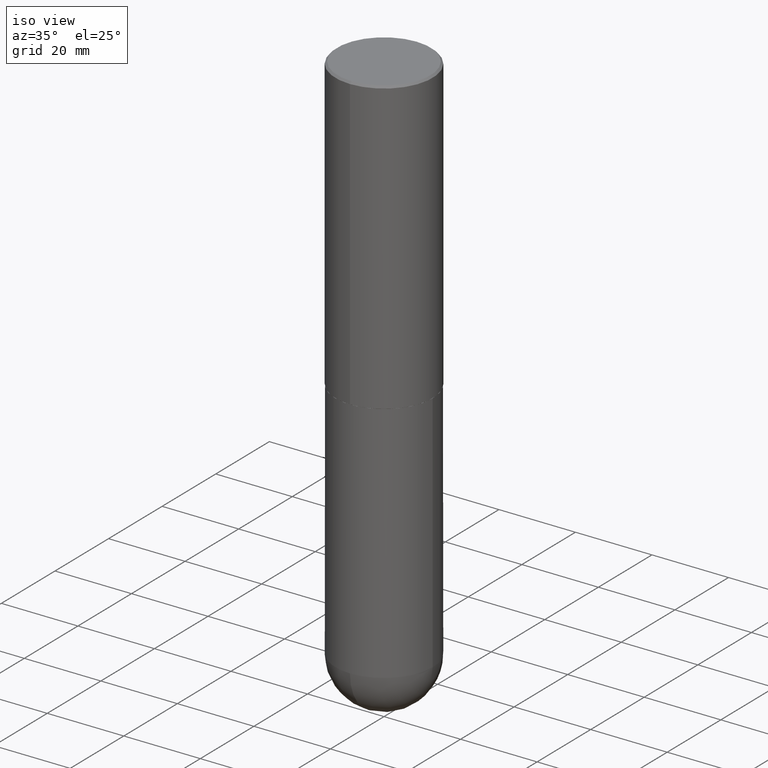
[diagram: clean part render]
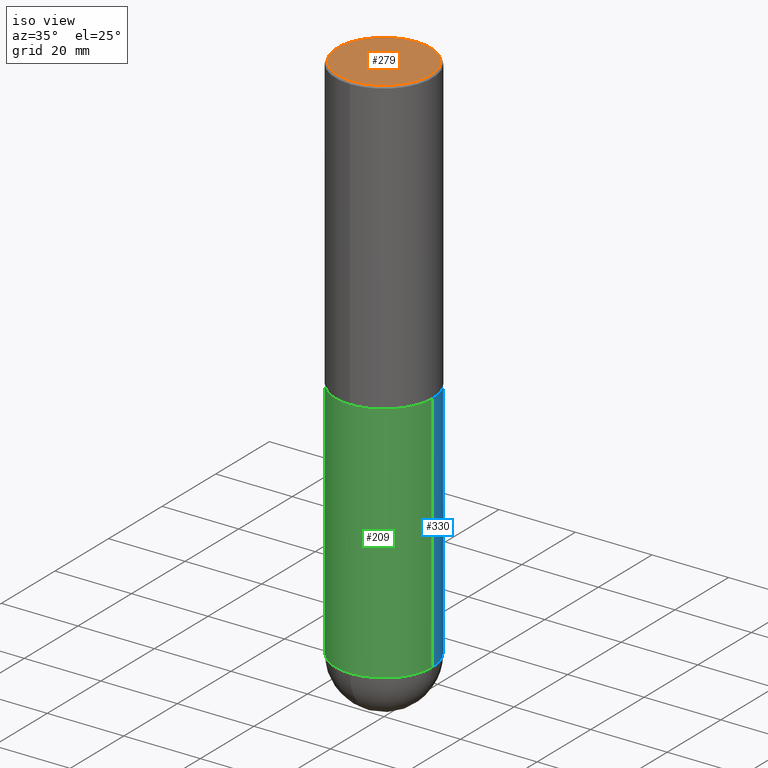
[diagram: same view with three faces highlighted in distinct colors, each labeled with its STEP entity id]
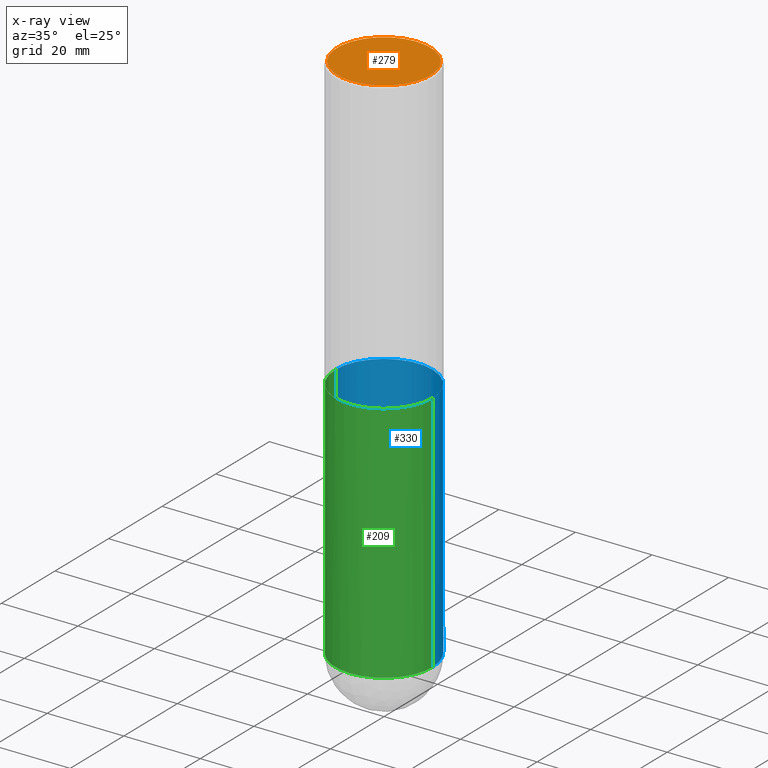
[diagram: x-ray of the same camera — body ghosted, the three highlighted faces saturated]
A machine part, iso view with three faces highlighted in distinct colors.
The next image is the same camera in x-ray (body ghosted, the three faces saturated) — at least one of them is partly hidden behind the body in this view.
Their STEP definitions:

[orange] entity #279 — the highlighted planar face has unit normal (0, -0, -1).
#39 = CARTESIAN_POINT ( 'NONE',  ( 3.351822085289413464E-15, 0.4800000000000008149, -2.119759816828009615E-15 ) ) ;
#50 = DIRECTION ( 'NONE',  ( -2.445691460240369790E-29, 3.491162485563369808E-15, 1.000000000000000000 ) ) ;
#66 = CARTESIAN_POINT ( 'NONE',  ( 2.171782937390169934E-44, -3.100165021248426983E-30, -8.880036475151778487E-16 ) ) ;
#71 = AXIS2_PLACEMENT_3D ( 'NONE', #247, #50, #370 ) ;
#116 = ORIENTED_EDGE ( 'NONE', *, *, #323, .T. ) ;
#117 = CIRCLE ( 'NONE', #345, 0.4800000000000008149 ) ;
#157 = DIRECTION ( 'NONE',  ( -2.445691460240369790E-29, 3.491162485563369808E-15, 1.000000000000000000 ) ) ;
#173 = EDGE_LOOP ( 'NONE', ( #116, #278 ) ) ;
#176 = VERTEX_POINT ( 'NONE', #285 ) ;
#202 = FACE_OUTER_BOUND ( 'NONE', #173, .T. ) ;
#204 = VERTEX_POINT ( 'NONE', #206 ) ;
#206 = CARTESIAN_POINT ( 'NONE',  ( 3.421651712066273607E-15, 0.4800000000000008149, -2.563761640585598047E-15 ) ) ;
#218 = EDGE_CURVE ( 'NONE', #176, #204, #252, .T. ) ;
#235 = DIRECTION ( 'NONE',  ( 2.445691460240369509E-29, -3.491162485563369808E-15, -1.000000000000000000 ) ) ;
#242 = AXIS2_PLACEMENT_3D ( 'NONE', #39, #235, #386 ) ;
#247 = CARTESIAN_POINT ( 'NONE',  ( 2.171782937390169934E-44, -3.100165021248426983E-30, -8.880036475151778487E-16 ) ) ;
#252 = CIRCLE ( 'NONE', #71, 0.4800000000000008149 ) ;
#278 = ORIENTED_EDGE ( 'NONE', *, *, #218, .T. ) ;
#279 = ADVANCED_FACE ( 'NONE', ( #202 ), #320, .F. ) ;
#285 = CARTESIAN_POINT ( 'NONE',  ( -3.361644018908052422E-15, -0.4800000000000008149, 7.877543455552426451E-16 ) ) ;
#320 = PLANE ( 'NONE',  #242 ) ;
#323 = EDGE_CURVE ( 'NONE', #204, #176, #117, .T. ) ;
#345 = AXIS2_PLACEMENT_3D ( 'NONE', #66, #157, #407 ) ;
#370 = DIRECTION ( 'NONE',  ( -6.982962677686265922E-15, -1.000000000000000000, 3.491162485563369808E-15 ) ) ;
#386 = DIRECTION ( 'NONE',  ( 6.982962677686265922E-15, 1.000000000000000000, -3.491162485563369808E-15 ) ) ;
#407 = DIRECTION ( 'NONE',  ( -6.982962677686265922E-15, -1.000000000000000000, 3.491162485563369808E-15 ) ) ;

[blue] entity #330 — the highlighted cylindrical surface (partial cylindrical patch) has radius 12.7 mm, axis along (-0, 0, 1).
#3 = LINE ( 'NONE', #131, #105 ) ;
#14 = VERTEX_POINT ( 'NONE', #198 ) ;
#26 = AXIS2_PLACEMENT_3D ( 'NONE', #410, #123, #314 ) ;
#32 = EDGE_CURVE ( 'NONE', #143, #239, #219, .T. ) ;
#49 = ORIENTED_EDGE ( 'NONE', *, *, #396, .T. ) ;
#61 = CIRCLE ( 'NONE', #310, 0.5000000000000000000 ) ;
#72 = DIRECTION ( 'NONE',  ( -2.445468806185136877E-29, 3.491481338843145188E-15, 1.000000000000000000 ) ) ;
#77 = EDGE_LOOP ( 'NONE', ( #193, #49, #133, #185, #107 ) ) ;
#80 = CARTESIAN_POINT ( 'NONE',  ( -0.5000000000000000000, -1.128608201128286947E-14, -3.000000000000000444 ) ) ;
#82 = VERTEX_POINT ( 'NONE', #126 ) ;
#87 = AXIS2_PLACEMENT_3D ( 'NONE', #129, #233, #253 ) ;
#89 = VECTOR ( 'NONE', #72, 39.37007874015748143 ) ;
#91 = DIRECTION ( 'NONE',  ( -2.445468806185136597E-29, 3.491481338843145583E-15, 1.000000000000000000 ) ) ;
#100 = FACE_OUTER_BOUND ( 'NONE', #77, .T. ) ;
#104 = CARTESIAN_POINT ( 'NONE',  ( 1.345007843401825128E-28, -1.920314736363730603E-14, -5.500000000000000888 ) ) ;
#105 = VECTOR ( 'NONE', #268, 39.37007874015748143 ) ;
#107 = ORIENTED_EDGE ( 'NONE', *, *, #150, .T. ) ;
#123 = DIRECTION ( 'NONE',  ( -2.445468806185136597E-29, 3.491481338843145583E-15, 1.000000000000000000 ) ) ;
#126 = CARTESIAN_POINT ( 'NONE',  ( 0.5000000000000000000, -1.833027702892651007E-14, -5.500000000000000888 ) ) ;
#129 = CARTESIAN_POINT ( 'NONE',  ( 7.336406418555409790E-29, -1.047444401652943635E-14, -3.000000000000000444 ) ) ;
#130 = EDGE_CURVE ( 'NONE', #14, #207, #282, .T. ) ;
#131 = CARTESIAN_POINT ( 'NONE',  ( -0.5000000000000000000, 3.552713678800500929E-15, -2.459467545127452891E-29 ) ) ;
#133 = ORIENTED_EDGE ( 'NONE', *, *, #130, .F. ) ;
#143 = VERTEX_POINT ( 'NONE', #390 ) ;
#150 = EDGE_CURVE ( 'NONE', #82, #143, #61, .T. ) ;
#160 = CYLINDRICAL_SURFACE ( 'NONE', #26, 0.5000000000000000000 ) ;
#185 = ORIENTED_EDGE ( 'NONE', *, *, #277, .F. ) ;
#186 = LINE ( 'NONE', #355, #89 ) ;
#193 = ORIENTED_EDGE ( 'NONE', *, *, #32, .T. ) ;
#198 = CARTESIAN_POINT ( 'NONE',  ( 0.5000000000000000000, -1.396592535537257129E-14, -3.000000000000000444 ) ) ;
#207 = VERTEX_POINT ( 'NONE', #80 ) ;
#219 = CIRCLE ( 'NONE', #251, 0.5000000000000000000 ) ;
#233 = DIRECTION ( 'NONE',  ( -2.445468806185136597E-29, 3.491481338843145583E-15, 1.000000000000000000 ) ) ;
#239 = VERTEX_POINT ( 'NONE', #341 ) ;
#251 = AXIS2_PLACEMENT_3D ( 'NONE', #266, #91, #260 ) ;
#253 = DIRECTION ( 'NONE',  ( 1.000000000000000000, -6.982962677686266711E-15, 0.000000000000000000 ) ) ;
#260 = DIRECTION ( 'NONE',  ( 1.000000000000000000, -6.982962677686270655E-15, 0.000000000000000000 ) ) ;
#266 = CARTESIAN_POINT ( 'NONE',  ( 1.345007843401825128E-28, -1.920314736363730603E-14, -5.500000000000000888 ) ) ;
#268 = DIRECTION ( 'NONE',  ( -2.445468806185136877E-29, 3.491481338843145188E-15, 1.000000000000000000 ) ) ;
#277 = EDGE_CURVE ( 'NONE', #82, #14, #186, .T. ) ;
#282 = CIRCLE ( 'NONE', #87, 0.5000000000000000000 ) ;
#310 = AXIS2_PLACEMENT_3D ( 'NONE', #104, #313, #360 ) ;
#313 = DIRECTION ( 'NONE',  ( -2.445468806185136597E-29, 3.491481338843145583E-15, 1.000000000000000000 ) ) ;
#314 = DIRECTION ( 'NONE',  ( 1.000000000000000000, -6.982962677686266711E-15, 4.876176775795935793E-29 ) ) ;
#330 = ADVANCED_FACE ( 'NONE', ( #100 ), #160, .T. ) ;
#341 = CARTESIAN_POINT ( 'NONE',  ( -0.5000000000000000000, -1.128608201128287263E-14, -5.500000000000000888 ) ) ;
#355 = CARTESIAN_POINT ( 'NONE',  ( 0.5000000000000000000, -3.491481338843133355E-15, 2.438088387897967896E-29 ) ) ;
#360 = DIRECTION ( 'NONE',  ( 1.000000000000000000, -6.982962677686270655E-15, 0.000000000000000000 ) ) ;
#390 = CARTESIAN_POINT ( 'NONE',  ( 3.491481338843267462E-15, 0.4999999999999808487, -5.500000000000002665 ) ) ;
#396 = EDGE_CURVE ( 'NONE', #239, #207, #3, .T. ) ;
#410 = CARTESIAN_POINT ( 'NONE',  ( 0.000000000000000000, 0.000000000000000000, 0.000000000000000000 ) ) ;

[green] entity #209 — the highlighted cylindrical surface (partial cylindrical patch) has radius 12.7 mm, axis along (-0, 0, 1).
#3 = LINE ( 'NONE', #131, #105 ) ;
#10 = DIRECTION ( 'NONE',  ( -2.445468806185136597E-29, 3.491481338843145583E-15, 1.000000000000000000 ) ) ;
#13 = VERTEX_POINT ( 'NONE', #290 ) ;
#14 = VERTEX_POINT ( 'NONE', #198 ) ;
#19 = CIRCLE ( 'NONE', #35, 0.5000000000000000000 ) ;
#35 = AXIS2_PLACEMENT_3D ( 'NONE', #225, #257, #381 ) ;
#41 = CARTESIAN_POINT ( 'NONE',  ( 1.345007843401825128E-28, -1.920314736363730603E-14, -5.500000000000000888 ) ) ;
#48 = EDGE_LOOP ( 'NONE', ( #214, #306, #401, #400, #369 ) ) ;
#72 = DIRECTION ( 'NONE',  ( -2.445468806185136877E-29, 3.491481338843145188E-15, 1.000000000000000000 ) ) ;
#78 = CARTESIAN_POINT ( 'NONE',  ( 0.000000000000000000, 0.000000000000000000, 0.000000000000000000 ) ) ;
#80 = CARTESIAN_POINT ( 'NONE',  ( -0.5000000000000000000, -1.128608201128286947E-14, -3.000000000000000444 ) ) ;
#82 = VERTEX_POINT ( 'NONE', #126 ) ;
#85 = CIRCLE ( 'NONE', #338, 0.5000000000000000000 ) ;
#89 = VECTOR ( 'NONE', #72, 39.37007874015748143 ) ;
#105 = VECTOR ( 'NONE', #268, 39.37007874015748143 ) ;
#118 = EDGE_CURVE ( 'NONE', #207, #14, #19, .T. ) ;
#126 = CARTESIAN_POINT ( 'NONE',  ( 0.5000000000000000000, -1.833027702892651007E-14, -5.500000000000000888 ) ) ;
#131 = CARTESIAN_POINT ( 'NONE',  ( -0.5000000000000000000, 3.552713678800500929E-15, -2.459467545127452891E-29 ) ) ;
#139 = DIRECTION ( 'NONE',  ( -2.445468806185136597E-29, 3.491481338843145583E-15, 1.000000000000000000 ) ) ;
#147 = CIRCLE ( 'NONE', #182, 0.5000000000000000000 ) ;
#168 = EDGE_CURVE ( 'NONE', #13, #82, #147, .T. ) ;
#171 = DIRECTION ( 'NONE',  ( 1.000000000000000000, -6.982962677686270655E-15, 0.000000000000000000 ) ) ;
#174 = FACE_OUTER_BOUND ( 'NONE', #48, .T. ) ;
#182 = AXIS2_PLACEMENT_3D ( 'NONE', #41, #139, #171 ) ;
#186 = LINE ( 'NONE', #355, #89 ) ;
#198 = CARTESIAN_POINT ( 'NONE',  ( 0.5000000000000000000, -1.396592535537257129E-14, -3.000000000000000444 ) ) ;
#199 = DIRECTION ( 'NONE',  ( 1.000000000000000000, -6.982962677686270655E-15, 0.000000000000000000 ) ) ;
#207 = VERTEX_POINT ( 'NONE', #80 ) ;
#209 = ADVANCED_FACE ( 'NONE', ( #174 ), #333, .T. ) ;
#214 = ORIENTED_EDGE ( 'NONE', *, *, #396, .F. ) ;
#225 = CARTESIAN_POINT ( 'NONE',  ( 7.336406418555409790E-29, -1.047444401652943635E-14, -3.000000000000000444 ) ) ;
#236 = AXIS2_PLACEMENT_3D ( 'NONE', #78, #10, #274 ) ;
#239 = VERTEX_POINT ( 'NONE', #341 ) ;
#257 = DIRECTION ( 'NONE',  ( -2.445468806185136597E-29, 3.491481338843145583E-15, 1.000000000000000000 ) ) ;
#268 = DIRECTION ( 'NONE',  ( -2.445468806185136877E-29, 3.491481338843145188E-15, 1.000000000000000000 ) ) ;
#274 = DIRECTION ( 'NONE',  ( 1.000000000000000000, -6.982962677686266711E-15, 4.876176775795935793E-29 ) ) ;
#277 = EDGE_CURVE ( 'NONE', #82, #14, #186, .T. ) ;
#290 = CARTESIAN_POINT ( 'NONE',  ( -3.552713678800369978E-15, -0.5000000000000196509, -5.499999999999999112 ) ) ;
#300 = CARTESIAN_POINT ( 'NONE',  ( 1.345007843401825128E-28, -1.920314736363730603E-14, -5.500000000000000888 ) ) ;
#306 = ORIENTED_EDGE ( 'NONE', *, *, #372, .T. ) ;
#333 = CYLINDRICAL_SURFACE ( 'NONE', #236, 0.5000000000000000000 ) ;
#338 = AXIS2_PLACEMENT_3D ( 'NONE', #300, #358, #199 ) ;
#341 = CARTESIAN_POINT ( 'NONE',  ( -0.5000000000000000000, -1.128608201128287263E-14, -5.500000000000000888 ) ) ;
#355 = CARTESIAN_POINT ( 'NONE',  ( 0.5000000000000000000, -3.491481338843133355E-15, 2.438088387897967896E-29 ) ) ;
#358 = DIRECTION ( 'NONE',  ( -2.445468806185136597E-29, 3.491481338843145583E-15, 1.000000000000000000 ) ) ;
#369 = ORIENTED_EDGE ( 'NONE', *, *, #118, .F. ) ;
#372 = EDGE_CURVE ( 'NONE', #239, #13, #85, .T. ) ;
#381 = DIRECTION ( 'NONE',  ( 1.000000000000000000, -6.982962677686266711E-15, 0.000000000000000000 ) ) ;
#396 = EDGE_CURVE ( 'NONE', #239, #207, #3, .T. ) ;
#400 = ORIENTED_EDGE ( 'NONE', *, *, #277, .T. ) ;
#401 = ORIENTED_EDGE ( 'NONE', *, *, #168, .T. ) ;